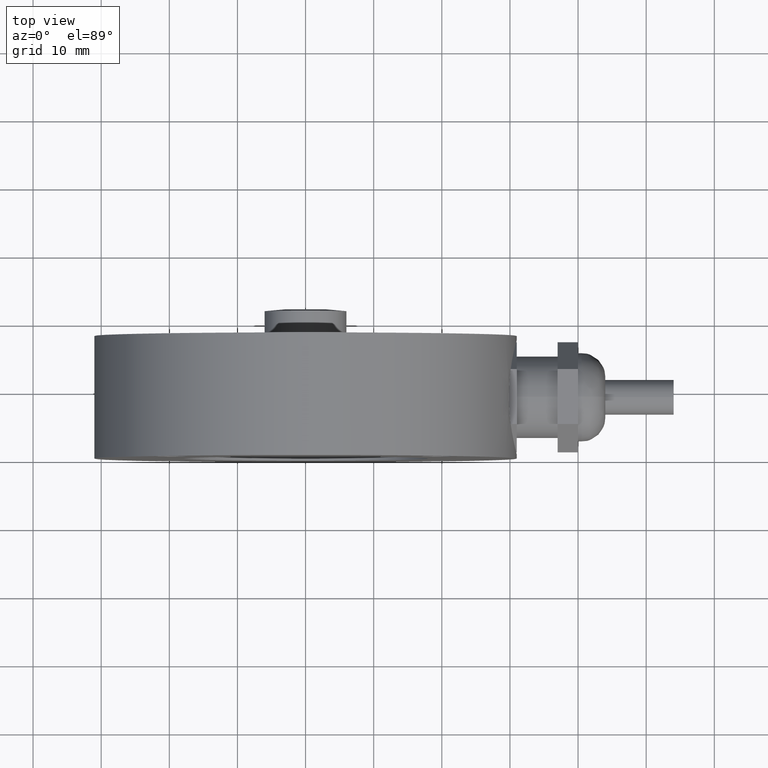
[diagram: clean part render]
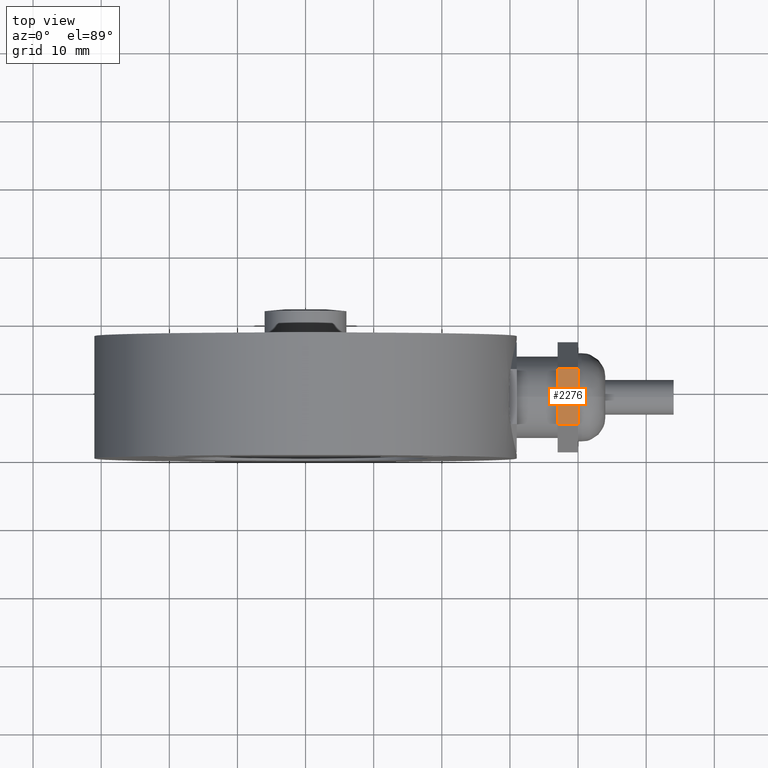
[diagram: same view with one face highlighted and labeled with its STEP entity id]
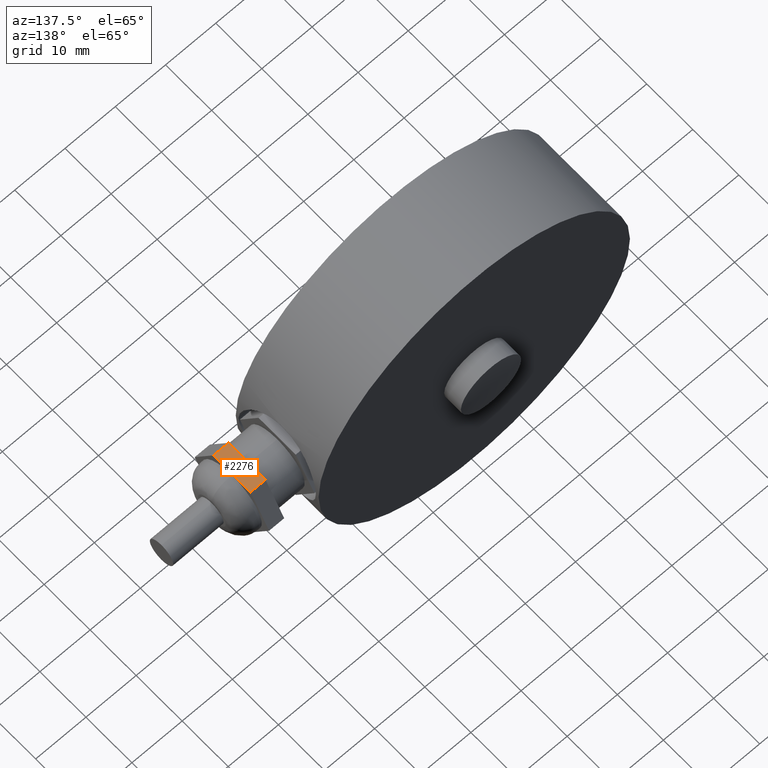
[diagram: same view with one face highlighted and labeled with its STEP entity id]
A machine part, top view. The second image highlights one B-rep face of the part: STEP entity #2276.
A second angle (auxiliary view) of the same face is appended — the face is thin or edge-on in the first view.
In plain terms, the highlighted planar face has unit normal (0, 0, 1).
Its self-contained STEP definition (entity closure, byte-faithful):
#232=PLANE('',#2443);
#263=FACE_OUTER_BOUND('',#408,.T.);
#408=EDGE_LOOP('',(#1488,#1489,#1490,#1491));
#558=LINE('',#3171,#692);
#565=LINE('',#3186,#699);
#566=LINE('',#3189,#700);
#567=LINE('',#3190,#701);
#692=VECTOR('',#2647,10.);
#699=VECTOR('',#2660,10.);
#700=VECTOR('',#2663,10.);
#701=VECTOR('',#2664,10.);
#877=VERTEX_POINT('',#3168);
#878=VERTEX_POINT('',#3170);
#883=VERTEX_POINT('',#3184);
#884=VERTEX_POINT('',#3188);
#1111=EDGE_CURVE('',#878,#877,#558,.T.);
#1119=EDGE_CURVE('',#877,#883,#565,.T.);
#1120=EDGE_CURVE('',#884,#883,#566,.T.);
#1121=EDGE_CURVE('',#878,#884,#567,.T.);
#1488=ORIENTED_EDGE('',*,*,#1111,.T.);
#1489=ORIENTED_EDGE('',*,*,#1119,.T.);
#1490=ORIENTED_EDGE('',*,*,#1120,.F.);
#1491=ORIENTED_EDGE('',*,*,#1121,.F.);
#2276=ADVANCED_FACE('',(#263),#232,.T.);
#2443=AXIS2_PLACEMENT_3D('',#3187,#2661,#2662);
#2647=DIRECTION('',(0.,-1.,4.12063432796478E-16));
#2660=DIRECTION('',(1.,0.,0.));
#2661=DIRECTION('center_axis',(0.,4.12063432796478E-16,1.));
#2662=DIRECTION('ref_axis',(0.,-1.,4.12063432796478E-16));
#2663=DIRECTION('',(0.,-1.,4.12063432796478E-16));
#2664=DIRECTION('',(1.,0.,0.));
#3168=CARTESIAN_POINT('',(9.,-4.04145188432738,7.));
#3170=CARTESIAN_POINT('',(9.,4.04145188432738,7.));
#3171=CARTESIAN_POINT('',(9.,4.04145188432738,7.));
#3184=CARTESIAN_POINT('',(12.,-4.04145188432738,7.));
#3186=CARTESIAN_POINT('',(9.,-4.04145188432738,7.));
#3187=CARTESIAN_POINT('Origin',(9.,4.04145188432738,7.));
#3188=CARTESIAN_POINT('',(12.,4.04145188432738,7.));
#3189=CARTESIAN_POINT('',(12.,4.04145188432738,7.));
#3190=CARTESIAN_POINT('',(9.,4.04145188432738,7.));